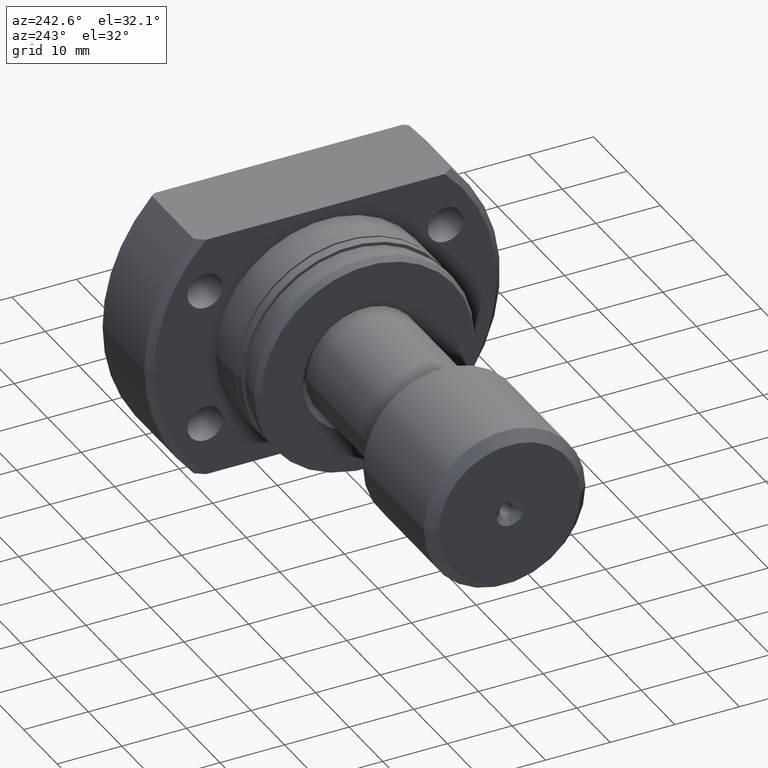
[diagram: clean part render]
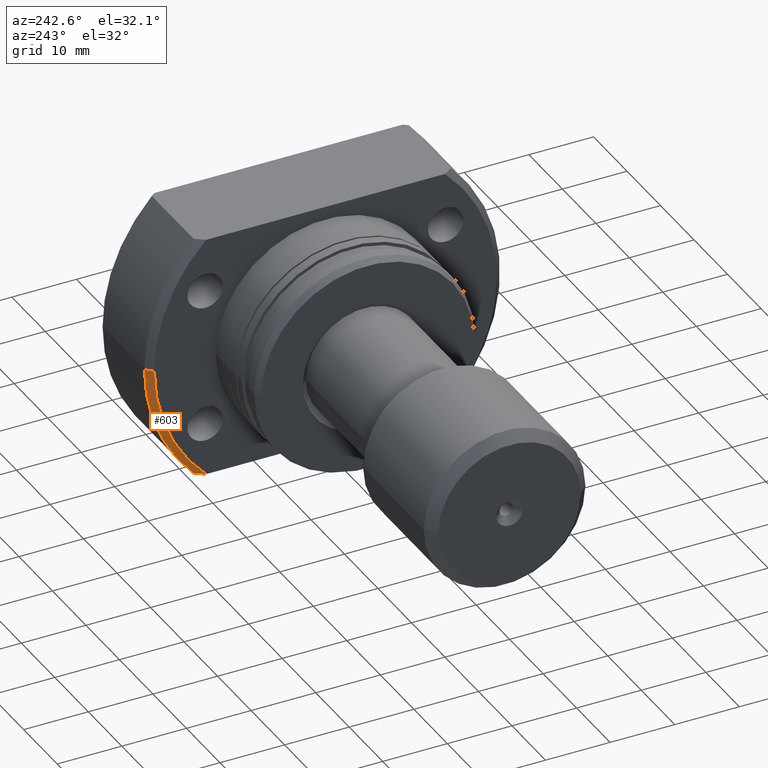
[diagram: same view with one face highlighted and labeled with its STEP entity id]
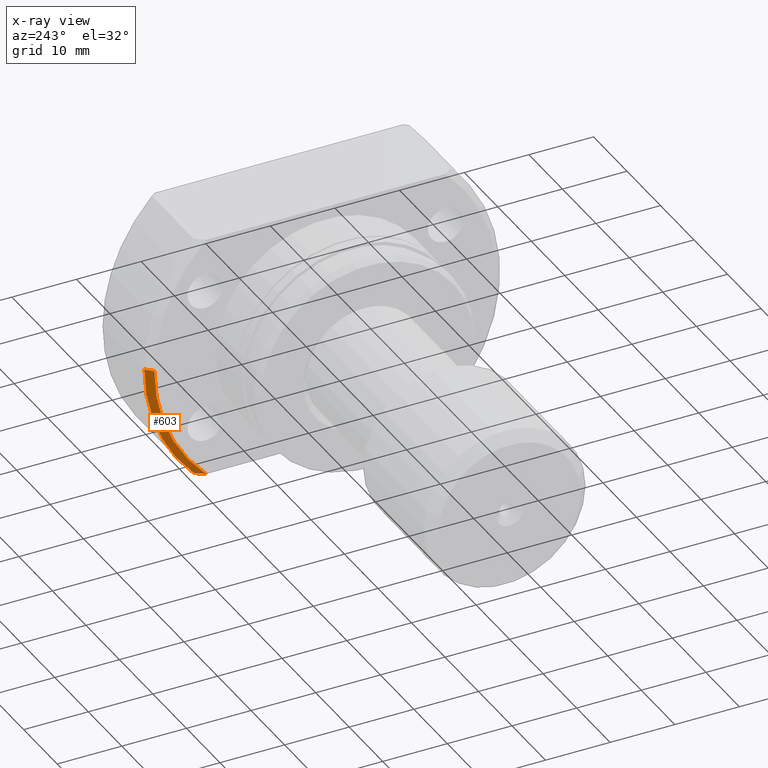
[diagram: x-ray of the same camera — body ghosted, the highlighted face saturated]
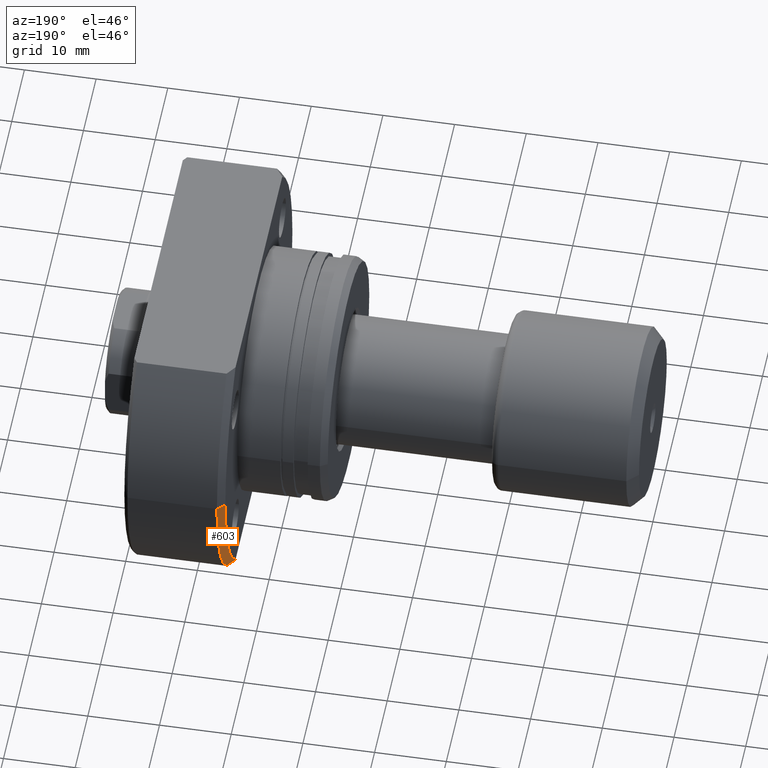
[diagram: same view with one face highlighted and labeled with its STEP entity id]
A machine part, auxiliary view. The second image highlights one B-rep face of the part: STEP entity #603.
The next image is the same camera in x-ray: the body ghosted, the highlighted face saturated — about 0% of this face is hidden behind the body in this view.
A second angle (auxiliary view) of the same face is appended — the face is thin or edge-on in the first view.
In plain terms, the highlighted conical surface has half-angle 45 deg.
Its self-contained STEP definition (entity closure, byte-faithful):
#62 = ORIENTED_EDGE ( 'NONE', *, *, #2550, .T. ) ;
#155 = DIRECTION ( 'NONE',  ( 0.7071067811865500152, 0.7071067811865450192, 0.000000000000000000 ) ) ;
#164 = VERTEX_POINT ( 'NONE', #3053 ) ;
#188 = CARTESIAN_POINT ( 'NONE',  ( 12.50000000000000355, 1.155327169006938207E-16, 0.000000000000000000 ) ) ;
#342 = EDGE_CURVE ( 'NONE', #608, #3152, #685, .T. ) ;
#383 = ORIENTED_EDGE ( 'NONE', *, *, #897, .T. ) ;
#400 = CARTESIAN_POINT ( 'NONE',  ( 13.49999999999999112, 1.247753342527491952E-16, 0.000000000000000000 ) ) ;
#546 = EDGE_CURVE ( 'NONE', #608, #3167, #2364, .T. ) ;
#596 = EDGE_LOOP ( 'NONE', ( #62, #383, #645, #2267 ) ) ;
#603 = ADVANCED_FACE ( 'NONE', ( #2504 ), #736, .T. ) ;
#608 = VERTEX_POINT ( 'NONE', #1797 ) ;
#628 = VECTOR ( 'NONE', #155, 1000.000000000000000 ) ;
#645 = ORIENTED_EDGE ( 'NONE', *, *, #342, .F. ) ;
#685 = CIRCLE ( 'NONE', #3206, 27.49999999999991473 ) ;
#700 = DIRECTION ( 'NONE',  ( 0.000000000000000000, 1.000000000000000000, 0.000000000000000000 ) ) ;
#736 = CONICAL_SURFACE ( 'NONE', #1988, 26.49999999999993250, 0.7853981633974447263 ) ;
#897 = EDGE_CURVE ( 'NONE', #164, #3152, #2175, .T. ) ;
#937 = CARTESIAN_POINT ( 'NONE',  ( 12.82923531929442440, 18.94525104546319128, -19.00000000000001066 ) ) ;
#954 = CARTESIAN_POINT ( 'NONE',  ( 13.16276636410033696, 19.41442114037127098, -19.00000000000001066 ) ) ;
#985 = DIRECTION ( 'NONE',  ( 1.000000000000000000, 9.242617352055502386E-18, -0.000000000000000000 ) ) ;
#1097 = DIRECTION ( 'NONE',  ( 1.000000000000000000, 9.242617352055502386E-18, -0.000000000000000000 ) ) ;
#1242 = DIRECTION ( 'NONE',  ( 1.000000000000000000, 9.242617352055502386E-18, -0.000000000000000000 ) ) ;
#1398 = DIRECTION ( 'NONE',  ( 0.000000000000000000, 1.000000000000000000, 0.000000000000000000 ) ) ;
#1637 = AXIS2_PLACEMENT_3D ( 'NONE', #188, #985, #700 ) ;
#1797 = CARTESIAN_POINT ( 'NONE',  ( 13.49999999999998757, 19.88089535207129543, -18.99999999999999645 ) ) ;
#1988 = AXIS2_PLACEMENT_3D ( 'NONE', #2541, #1242, #3031 ) ;
#2085 = CARTESIAN_POINT ( 'NONE',  ( 13.49999999999999112, 27.49999999999991473, 0.000000000000000000 ) ) ;
#2175 = LINE ( 'NONE', #3184, #628 ) ;
#2267 = ORIENTED_EDGE ( 'NONE', *, *, #546, .T. ) ;
#2364 = B_SPLINE_CURVE_WITH_KNOTS ( 'NONE', 3,
 ( #2899, #954, #937, #2721 ),
 .UNSPECIFIED., .F., .F.,
 ( 4, 4 ),
 ( 0.03128279945209441748, 0.03301205973984314840 ),
 .UNSPECIFIED. ) ;
#2504 = FACE_OUTER_BOUND ( 'NONE', #596, .T. ) ;
#2541 = CARTESIAN_POINT ( 'NONE',  ( 12.50000000000000355, 1.155327169006938207E-16, 0.000000000000000000 ) ) ;
#2550 = EDGE_CURVE ( 'NONE', #3167, #164, #2696, .T. ) ;
#2603 = CARTESIAN_POINT ( 'NONE',  ( 12.50000000000000355, 18.47295320191106072, -19.00000000000001066 ) ) ;
#2696 = CIRCLE ( 'NONE', #1637, 26.49999999999993250 ) ;
#2721 = CARTESIAN_POINT ( 'NONE',  ( 12.50000000000000355, 18.47295320191106072, -19.00000000000001066 ) ) ;
#2899 = CARTESIAN_POINT ( 'NONE',  ( 13.49999999999998757, 19.88089535207129543, -18.99999999999999645 ) ) ;
#3031 = DIRECTION ( 'NONE',  ( 0.000000000000000000, 1.000000000000000000, 0.000000000000000000 ) ) ;
#3053 = CARTESIAN_POINT ( 'NONE',  ( 12.50000000000000355, 26.49999999999993250, 0.000000000000000000 ) ) ;
#3152 = VERTEX_POINT ( 'NONE', #2085 ) ;
#3167 = VERTEX_POINT ( 'NONE', #2603 ) ;
#3184 = CARTESIAN_POINT ( 'NONE',  ( 12.50000000000000355, 26.49999999999993250, 0.000000000000000000 ) ) ;
#3206 = AXIS2_PLACEMENT_3D ( 'NONE', #400, #1097, #1398 ) ;